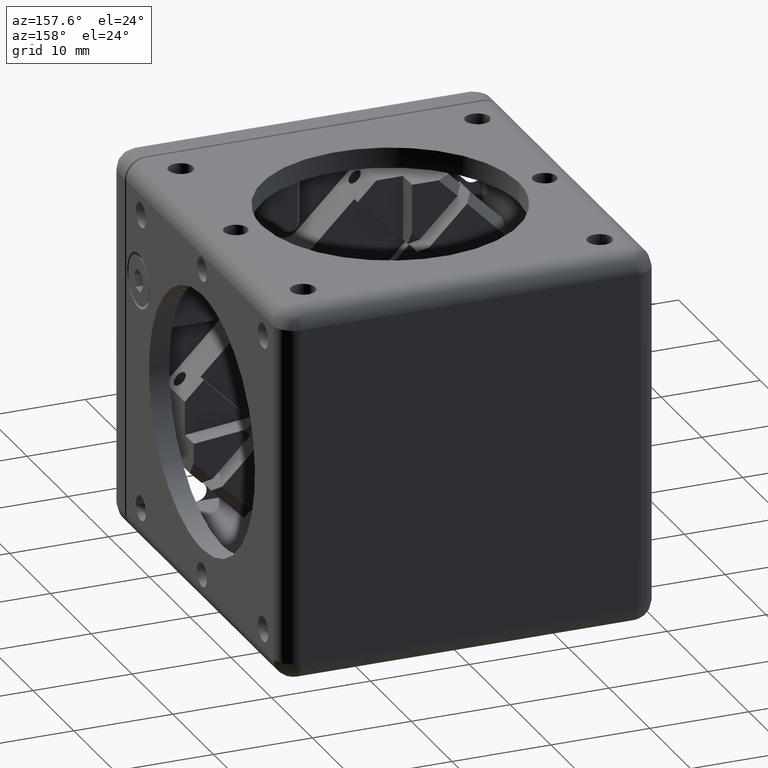
[diagram: clean part render]
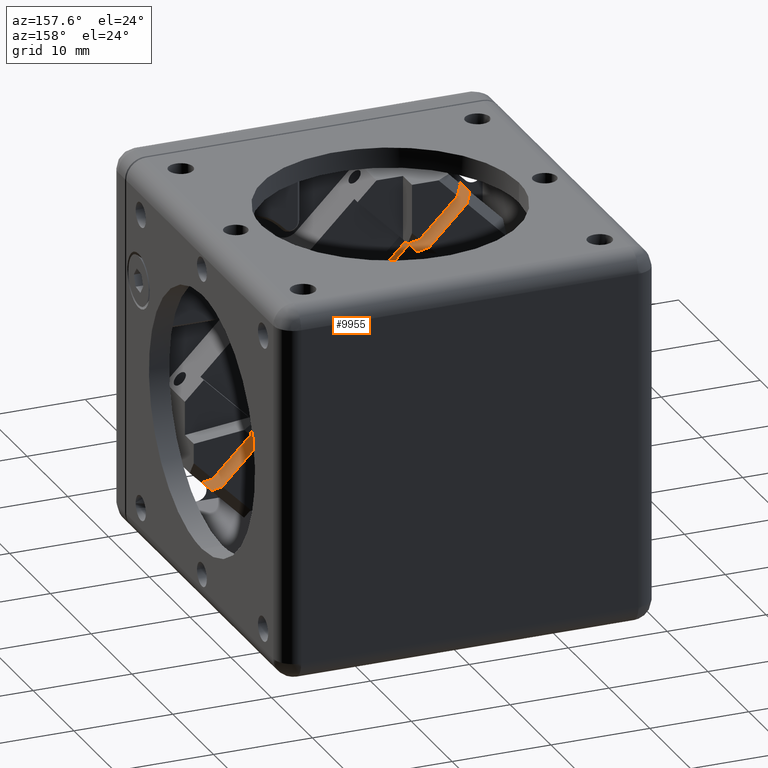
[diagram: same view with one face highlighted and labeled with its STEP entity id]
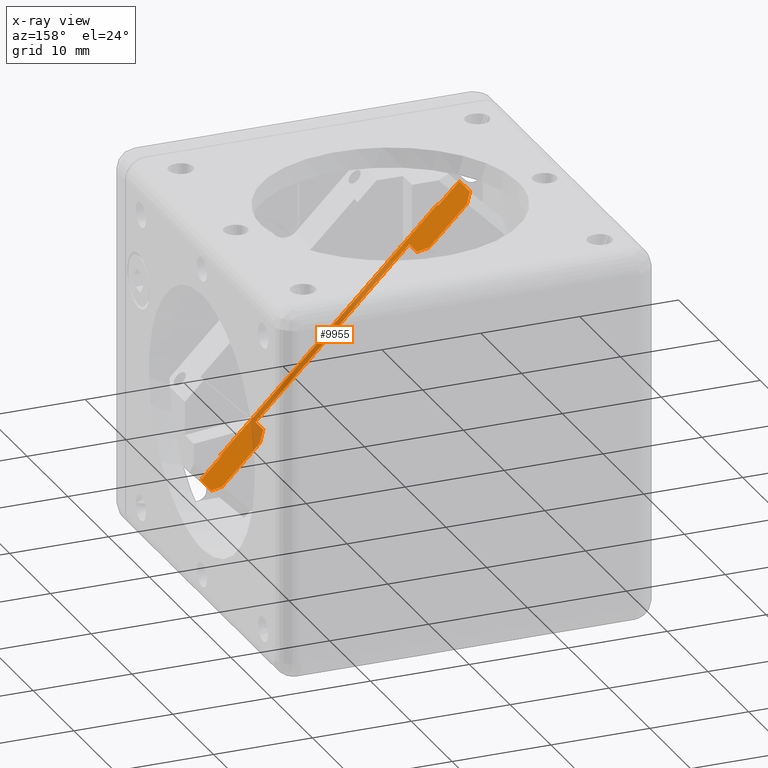
[diagram: x-ray of the same camera — body ghosted, the highlighted face saturated]
A machine part, auxiliary view. The second image highlights one B-rep face of the part: STEP entity #9955.
The next image is the same camera in x-ray: the body ghosted, the highlighted face saturated — about 28% of this face is hidden behind the body in this view.
In plain terms, the highlighted face is a freeform B-spline surface patch.
Its self-contained STEP definition (entity closure, byte-faithful):
#22 = CARTESIAN_POINT ( 'NONE',  ( -7.778174593052069596, 6.400000000000000355, 7.778174593052080255 ) ) ;
#250 = CARTESIAN_POINT ( 'NONE',  ( 8.555992052357192179, 9.400000000000000355, -8.555992052357181521 ) ) ;
#328 = EDGE_CURVE ( 'NONE', #5836, #11100, #9571, .T. ) ;
#447 = B_SPLINE_CURVE_WITH_KNOTS ( 'NONE', 1,
 ( #4942, #8827 ),
 .UNSPECIFIED., .F., .F.,
 ( 2, 2 ),
 ( 0.000000000000000000, 1.000000000000000000 ),
 .UNSPECIFIED. ) ;
#500 = CARTESIAN_POINT ( 'NONE',  ( -7.778174593052069596, 6.400000000000000355, 7.778174593052080255 ) ) ;
#545 = CARTESIAN_POINT ( 'NONE',  ( -10.96015510839150053, 5.559999999999999609, 10.96015510839150053 ) ) ;
#546 = CARTESIAN_POINT ( 'NONE',  ( -13.08147545195119932, 5.559999999999999609, 13.08147545195119932 ) ) ;
#572 = EDGE_CURVE ( 'NONE', #6273, #1776, #12282, .T. ) ;
#1028 = CARTESIAN_POINT ( 'NONE',  ( -7.778174593052069596, 8.300000000000000711, 7.778174593052080255 ) ) ;
#1747 = CARTESIAN_POINT ( 'NONE',  ( 13.08147545195109984, 8.400000000000000355, -13.08147545195109984 ) ) ;
#1760 = CARTESIAN_POINT ( 'NONE',  ( -10.96015510839150053, 5.799999999999999822, 10.96015510839150053 ) ) ;
#1765 = CARTESIAN_POINT ( 'NONE',  ( -12.37436867076459990, 9.400000000000000355, 12.37436867076459990 ) ) ;
#1776 = VERTEX_POINT ( 'NONE', #7831 ) ;
#2134 = B_SPLINE_CURVE_WITH_KNOTS ( 'NONE', 1,
 ( #11512, #6812 ),
 .UNSPECIFIED., .F., .F.,
 ( 2, 2 ),
 ( 0.000000000000000000, 1.000000000000000000 ),
 .UNSPECIFIED. ) ;
#2149 = VERTEX_POINT ( 'NONE', #4173 ) ;
#2230 = CARTESIAN_POINT ( 'NONE',  ( -7.778174593052069596, 7.200000000000000178, 7.778174593052069596 ) ) ;
#2271 = CARTESIAN_POINT ( 'NONE',  ( -12.37436867076459990, 9.400000000000000355, 12.37436867076459990 ) ) ;
#2309 = EDGE_CURVE ( 'NONE', #11549, #10891, #8489, .T. ) ;
#2692 = CARTESIAN_POINT ( 'NONE',  ( -7.778174593052069596, 6.400000000000000355, 7.778174593052080255 ) ) ;
#2708 = CARTESIAN_POINT ( 'NONE',  ( 10.96015510839140106, 5.799999999999999822, -10.96015510839140106 ) ) ;
#2874 = ORIENTED_EDGE ( 'NONE', *, *, #6344, .F. ) ;
#2897 = B_SPLINE_CURVE_WITH_KNOTS ( 'NONE', 1,
 ( #6985, #6074 ),
 .UNSPECIFIED., .F., .F.,
 ( 2, 2 ),
 ( 0.000000000000000000, 1.000000000000000000 ),
 .UNSPECIFIED. ) ;
#2904 = EDGE_CURVE ( 'NONE', #11100, #7842, #9944, .T. ) ;
#3141 = VERTEX_POINT ( 'NONE', #12458 ) ;
#3228 = B_SPLINE_CURVE_WITH_KNOTS ( 'NONE', 1,
 ( #11807, #12510 ),
 .UNSPECIFIED., .F., .F.,
 ( 2, 2 ),
 ( 0.000000000000000000, 1.000000000000000000 ),
 .UNSPECIFIED. ) ;
#3410 = ORIENTED_EDGE ( 'NONE', *, *, #572, .F. ) ;
#3481 = CARTESIAN_POINT ( 'NONE',  ( -13.08147545195119932, 8.400000000000000355, 13.08147545195119932 ) ) ;
#3519 = ORIENTED_EDGE ( 'NONE', *, *, #2904, .F. ) ;
#3841 = EDGE_CURVE ( 'NONE', #6160, #12370, #5492, .T. ) ;
#3944 = ORIENTED_EDGE ( 'NONE', *, *, #6743, .T. ) ;
#4173 = CARTESIAN_POINT ( 'NONE',  ( 13.08147545195109984, 8.400000000000000355, -13.08147545195109984 ) ) ;
#4457 = VERTEX_POINT ( 'NONE', #5007 ) ;
#4493 = CARTESIAN_POINT ( 'NONE',  ( 13.08147545195109984, 5.559999999999999609, -13.08147545195109984 ) ) ;
#4554 = B_SPLINE_CURVE_WITH_KNOTS ( 'NONE', 1,
 ( #6780, #9702 ),
 .UNSPECIFIED., .F., .F.,
 ( 2, 2 ),
 ( -1.000000000000000000, -0.000000000000000000 ),
 .UNSPECIFIED. ) ;
#4590 = ORIENTED_EDGE ( 'NONE', *, *, #11223, .F. ) ;
#4709 = CARTESIAN_POINT ( 'NONE',  ( 7.778174593051979890, 7.200000000000000178, -7.778174593051970120 ) ) ;
#4719 = EDGE_CURVE ( 'NONE', #4457, #8806, #7089, .T. ) ;
#4868 = CARTESIAN_POINT ( 'NONE',  ( -8.555992052357279221, 9.400000000000000355, 8.555992052357289879 ) ) ;
#4942 = CARTESIAN_POINT ( 'NONE',  ( 7.778174593051979890, 8.300000000000000711, -7.778174593051970120 ) ) ;
#4978 = CARTESIAN_POINT ( 'NONE',  ( -7.778174593052069596, 7.200000000000000178, 7.778174593052069596 ) ) ;
#5007 = CARTESIAN_POINT ( 'NONE',  ( 10.96015510839140106, 5.799999999999999822, -10.96015510839140106 ) ) ;
#5010 = CARTESIAN_POINT ( 'NONE',  ( 7.778174593051979890, 8.300000000000000711, -7.778174593051970120 ) ) ;
#5100 = ORIENTED_EDGE ( 'NONE', *, *, #11124, .F. ) ;
#5256 = VERTEX_POINT ( 'NONE', #2230 ) ;
#5453 = ORIENTED_EDGE ( 'NONE', *, *, #6622, .F. ) ;
#5454 = B_SPLINE_CURVE_WITH_KNOTS ( 'NONE', 1,
 ( #9745, #10578 ),
 .UNSPECIFIED., .F., .F.,
 ( 2, 2 ),
 ( 0.000000000000000000, 1.000000000000000000 ),
 .UNSPECIFIED. ) ;
#5492 = B_SPLINE_CURVE_WITH_KNOTS ( 'NONE', 1,
 ( #9519, #10286 ),
 .UNSPECIFIED., .F., .F.,
 ( 2, 2 ),
 ( 0.000000000000000000, 1.000000000000000000 ),
 .UNSPECIFIED. ) ;
#5646 = CARTESIAN_POINT ( 'NONE',  ( -13.08147545195119932, 5.799999999999999822, 13.08147545195119932 ) ) ;
#5739 = ORIENTED_EDGE ( 'NONE', *, *, #328, .F. ) ;
#5836 = VERTEX_POINT ( 'NONE', #9563 ) ;
#5849 = ORIENTED_EDGE ( 'NONE', *, *, #8238, .T. ) ;
#6074 = CARTESIAN_POINT ( 'NONE',  ( 7.778174593051979890, 7.200000000000000178, -7.778174593051970120 ) ) ;
#6160 = VERTEX_POINT ( 'NONE', #250 ) ;
#6273 = VERTEX_POINT ( 'NONE', #10494 ) ;
#6344 = EDGE_CURVE ( 'NONE', #1776, #3141, #8795, .T. ) ;
#6458 = CARTESIAN_POINT ( 'NONE',  ( 13.08147545195109984, 5.799999999999999822, -13.08147545195109984 ) ) ;
#6531 = B_SPLINE_CURVE_WITH_KNOTS ( 'NONE', 1,
 ( #1747, #10348 ),
 .UNSPECIFIED., .F., .F.,
 ( 2, 2 ),
 ( -1.000000000000000000, -0.000000000000000000 ),
 .UNSPECIFIED. ) ;
#6622 = EDGE_CURVE ( 'NONE', #10891, #11380, #11358, .T. ) ;
#6712 = B_SPLINE_CURVE_WITH_KNOTS ( 'NONE', 1,
 ( #8658, #9606 ),
 .UNSPECIFIED., .F., .F.,
 ( 2, 2 ),
 ( -1.000000000000000000, -0.000000000000000000 ),
 .UNSPECIFIED. ) ;
#6732 = CARTESIAN_POINT ( 'NONE',  ( 10.96015510839140106, 5.559999999999999609, -10.96015510839140106 ) ) ;
#6743 = EDGE_CURVE ( 'NONE', #9717, #11380, #2897, .T. ) ;
#6780 = CARTESIAN_POINT ( 'NONE',  ( -13.08147545195119932, 5.799999999999999822, 13.08147545195119932 ) ) ;
#6810 = ORIENTED_EDGE ( 'NONE', *, *, #2309, .F. ) ;
#6812 = CARTESIAN_POINT ( 'NONE',  ( -7.778174593052069596, 8.300000000000000711, 7.778174593052080255 ) ) ;
#6985 = CARTESIAN_POINT ( 'NONE',  ( 7.778174593051979890, 8.300000000000000711, -7.778174593051970120 ) ) ;
#7089 = B_SPLINE_CURVE_WITH_KNOTS ( 'NONE', 1,
 ( #2708, #6732 ),
 .UNSPECIFIED., .F., .F.,
 ( 2, 2 ),
 ( -1.000000000000000000, -0.000000000000000000 ),
 .UNSPECIFIED. ) ;
#7250 = CARTESIAN_POINT ( 'NONE',  ( -8.555992052357279221, 9.400000000000000355, 8.555992052357289879 ) ) ;
#7514 = ORIENTED_EDGE ( 'NONE', *, *, #8050, .F. ) ;
#7565 = ORIENTED_EDGE ( 'NONE', *, *, #4719, .F. ) ;
#7743 = EDGE_CURVE ( 'NONE', #2149, #9032, #6531, .T. ) ;
#7831 = CARTESIAN_POINT ( 'NONE',  ( -10.96015510839150053, 5.799999999999999822, 10.96015510839150053 ) ) ;
#7842 = VERTEX_POINT ( 'NONE', #4868 ) ;
#8050 = EDGE_CURVE ( 'NONE', #5256, #11549, #12466, .T. ) ;
#8208 = CARTESIAN_POINT ( 'NONE',  ( -12.37436867076459990, 9.400000000000000355, 12.37436867076459990 ) ) ;
#8238 = EDGE_CURVE ( 'NONE', #5256, #11217, #5454, .T. ) ;
#8356 = EDGE_CURVE ( 'NONE', #9717, #6160, #447, .T. ) ;
#8452 = FACE_OUTER_BOUND ( 'NONE', #11245, .T. ) ;
#8489 = B_SPLINE_CURVE_WITH_KNOTS ( 'NONE', 1,
 ( #2692, #11412 ),
 .UNSPECIFIED., .F., .F.,
 ( 2, 2 ),
 ( 0.000000000000000000, 1.000000000000000000 ),
 .UNSPECIFIED. ) ;
#8530 = ORIENTED_EDGE ( 'NONE', *, *, #7743, .F. ) ;
#8620 = ORIENTED_EDGE ( 'NONE', *, *, #8356, .F. ) ;
#8658 = CARTESIAN_POINT ( 'NONE',  ( 13.08147545195109984, 5.799999999999999822, -13.08147545195109984 ) ) ;
#8782 = CARTESIAN_POINT ( 'NONE',  ( 10.96015510839140106, 5.559999999999999609, -10.96015510839140106 ) ) ;
#8795 = B_SPLINE_CURVE_WITH_KNOTS ( 'NONE', 1,
 ( #1760, #5646 ),
 .UNSPECIFIED., .F., .F.,
 ( 2, 2 ),
 ( -1.000000000000000000, -0.000000000000000000 ),
 .UNSPECIFIED. ) ;
#8806 = VERTEX_POINT ( 'NONE', #8782 ) ;
#8827 = CARTESIAN_POINT ( 'NONE',  ( 8.555992052357192179, 9.400000000000000355, -8.555992052357181521 ) ) ;
#9032 = VERTEX_POINT ( 'NONE', #6458 ) ;
#9329 = CARTESIAN_POINT ( 'NONE',  ( -13.08147545195119932, 9.400000000000000355, 13.08147545195119932 ) ) ;
#9519 = CARTESIAN_POINT ( 'NONE',  ( 8.555992052357192179, 9.400000000000000355, -8.555992052357181521 ) ) ;
#9563 = CARTESIAN_POINT ( 'NONE',  ( -13.08147545195119932, 8.400000000000000355, 13.08147545195119932 ) ) ;
#9571 = B_SPLINE_CURVE_WITH_KNOTS ( 'NONE', 1,
 ( #3481, #1765 ),
 .UNSPECIFIED., .F., .F.,
 ( 2, 2 ),
 ( 0.000000000000000000, 1.000000000000000000 ),
 .UNSPECIFIED. ) ;
#9606 = CARTESIAN_POINT ( 'NONE',  ( 10.96015510839140106, 5.799999999999999822, -10.96015510839140106 ) ) ;
#9702 = CARTESIAN_POINT ( 'NONE',  ( -13.08147545195119932, 8.400000000000000355, 13.08147545195119932 ) ) ;
#9717 = VERTEX_POINT ( 'NONE', #5010 ) ;
#9727 = ORIENTED_EDGE ( 'NONE', *, *, #10927, .F. ) ;
#9745 = CARTESIAN_POINT ( 'NONE',  ( -7.778174593052069596, 7.200000000000000178, 7.778174593052069596 ) ) ;
#9821 = ORIENTED_EDGE ( 'NONE', *, *, #10114, .F. ) ;
#9944 = B_SPLINE_CURVE_WITH_KNOTS ( 'NONE', 1,
 ( #2271, #7250 ),
 .UNSPECIFIED., .F., .F.,
 ( 2, 2 ),
 ( 0.000000000000000000, 1.000000000000000000 ),
 .UNSPECIFIED. ) ;
#9952 = ORIENTED_EDGE ( 'NONE', *, *, #10943, .F. ) ;
#9955 = ADVANCED_FACE ( 'NONE', ( #8452 ), #12335, .T. ) ;
#10100 = CARTESIAN_POINT ( 'NONE',  ( -10.96015510839150053, 5.559999999999999609, 10.96015510839150053 ) ) ;
#10114 = EDGE_CURVE ( 'NONE', #12370, #2149, #3228, .T. ) ;
#10167 = B_SPLINE_CURVE_WITH_KNOTS ( 'NONE', 1,
 ( #12433, #10100 ),
 .UNSPECIFIED., .F., .F.,
 ( 2, 2 ),
 ( 0.000000000000000000, 1.000000000000000000 ),
 .UNSPECIFIED. ) ;
#10286 = CARTESIAN_POINT ( 'NONE',  ( 12.37436867076450042, 9.400000000000000355, -12.37436867076450042 ) ) ;
#10348 = CARTESIAN_POINT ( 'NONE',  ( 13.08147545195109984, 5.799999999999999822, -13.08147545195109984 ) ) ;
#10494 = CARTESIAN_POINT ( 'NONE',  ( -10.96015510839150053, 5.559999999999999609, 10.96015510839150053 ) ) ;
#10578 = CARTESIAN_POINT ( 'NONE',  ( -7.778174593052069596, 8.300000000000000711, 7.778174593052080255 ) ) ;
#10622 = CARTESIAN_POINT ( 'NONE',  ( 12.37436867076450042, 9.400000000000000355, -12.37436867076450042 ) ) ;
#10891 = VERTEX_POINT ( 'NONE', #11578 ) ;
#10927 = EDGE_CURVE ( 'NONE', #9032, #4457, #6712, .T. ) ;
#10943 = EDGE_CURVE ( 'NONE', #7842, #11217, #2134, .T. ) ;
#11100 = VERTEX_POINT ( 'NONE', #8208 ) ;
#11124 = EDGE_CURVE ( 'NONE', #8806, #6273, #10167, .T. ) ;
#11217 = VERTEX_POINT ( 'NONE', #1028 ) ;
#11223 = EDGE_CURVE ( 'NONE', #3141, #5836, #4554, .T. ) ;
#11245 = EDGE_LOOP ( 'NONE', ( #9727, #8530, #9821, #11792, #8620, #3944, #5453, #6810, #7514, #5849, #9952, #3519, #5739, #4590, #2874, #3410, #5100, #7565 ) ) ;
#11358 = B_SPLINE_CURVE_WITH_KNOTS ( 'NONE', 1,
 ( #11628, #11757 ),
 .UNSPECIFIED., .F., .F.,
 ( 2, 2 ),
 ( -1.000000000000000000, 0.000000000000000000 ),
 .UNSPECIFIED. ) ;
#11380 = VERTEX_POINT ( 'NONE', #4709 ) ;
#11412 = CARTESIAN_POINT ( 'NONE',  ( 7.778174593051979890, 6.400000000000000355, -7.778174593051970120 ) ) ;
#11512 = CARTESIAN_POINT ( 'NONE',  ( -8.555992052357279221, 9.400000000000000355, 8.555992052357289879 ) ) ;
#11549 = VERTEX_POINT ( 'NONE', #500 ) ;
#11578 = CARTESIAN_POINT ( 'NONE',  ( 7.778174593051979890, 6.400000000000000355, -7.778174593051970120 ) ) ;
#11628 = CARTESIAN_POINT ( 'NONE',  ( 7.778174593051979890, 6.400000000000000355, -7.778174593051970120 ) ) ;
#11757 = CARTESIAN_POINT ( 'NONE',  ( 7.778174593051979890, 7.200000000000000178, -7.778174593051970120 ) ) ;
#11792 = ORIENTED_EDGE ( 'NONE', *, *, #3841, .F. ) ;
#11807 = CARTESIAN_POINT ( 'NONE',  ( 12.37436867076450042, 9.400000000000000355, -12.37436867076450042 ) ) ;
#12180 = CARTESIAN_POINT ( 'NONE',  ( -10.96015510839150053, 5.799999999999999822, 10.96015510839150053 ) ) ;
#12282 = B_SPLINE_CURVE_WITH_KNOTS ( 'NONE', 1,
 ( #545, #12180 ),
 .UNSPECIFIED., .F., .F.,
 ( 2, 2 ),
 ( -1.000000000000000000, -0.000000000000000000 ),
 .UNSPECIFIED. ) ;
#12335 = B_SPLINE_SURFACE_WITH_KNOTS ( 'NONE', 1, 1, ( 
 ( #9329, #12382 ),
 ( #546, #4493 ) ),
 .UNSPECIFIED., .F., .F., .F.,
 ( 2, 2 ),
 ( 2, 2 ),
 ( 0.000000000000000000, 1.000000000000000000 ),
 ( 0.000000000000000000, 1.000000000000000000 ),
 .UNSPECIFIED. ) ;
#12370 = VERTEX_POINT ( 'NONE', #10622 ) ;
#12382 = CARTESIAN_POINT ( 'NONE',  ( 13.08147545195109984, 9.400000000000000355, -13.08147545195109984 ) ) ;
#12433 = CARTESIAN_POINT ( 'NONE',  ( 10.96015510839140106, 5.559999999999999609, -10.96015510839140106 ) ) ;
#12458 = CARTESIAN_POINT ( 'NONE',  ( -13.08147545195119932, 5.799999999999999822, 13.08147545195119932 ) ) ;
#12466 = B_SPLINE_CURVE_WITH_KNOTS ( 'NONE', 1,
 ( #4978, #22 ),
 .UNSPECIFIED., .F., .F.,
 ( 2, 2 ),
 ( 0.000000000000000000, 1.000000000000000000 ),
 .UNSPECIFIED. ) ;
#12510 = CARTESIAN_POINT ( 'NONE',  ( 13.08147545195109984, 8.400000000000000355, -13.08147545195109984 ) ) ;